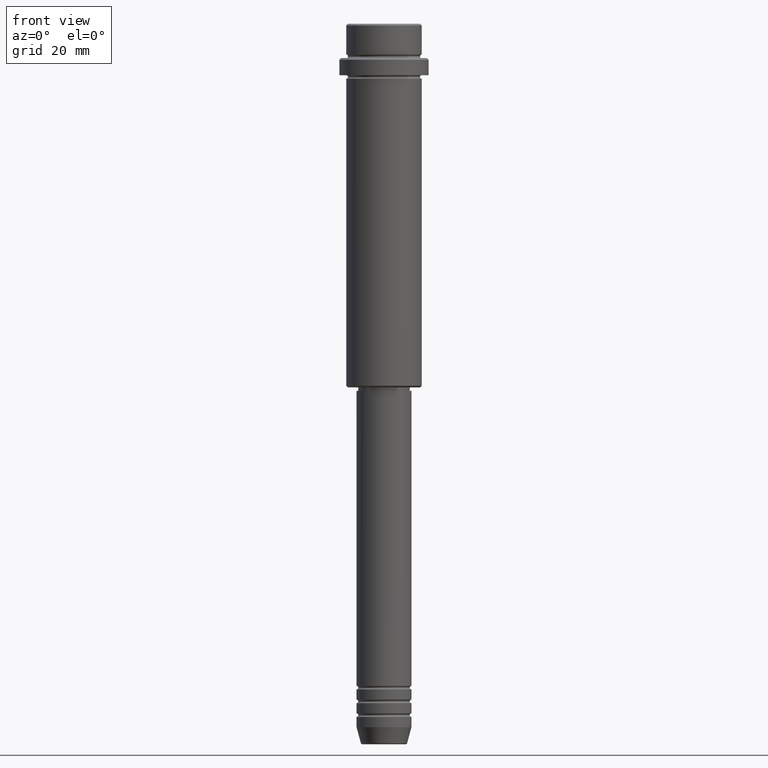
[diagram: clean part render]
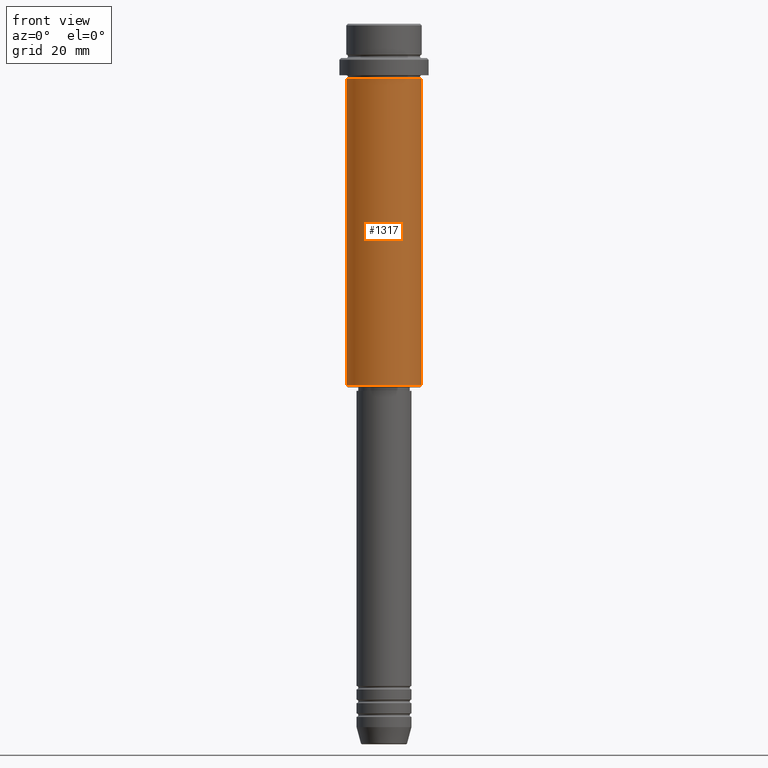
[diagram: same view with one face highlighted and labeled with its STEP entity id]
A machine part, front view. The second image highlights one B-rep face of the part: STEP entity #1317.
In plain terms, the highlighted cylindrical surface (partial cylindrical patch) has radius 11 mm, axis along (-0, -0, 1).
Its self-contained STEP definition (entity closure, byte-faithful):
#31 = EDGE_CURVE ( 'NONE', #207, #323, #254, .T. ) ;
#73 = DIRECTION ( 'NONE',  ( 1.000000000000000000, 0.000000000000000000, 0.000000000000000000 ) ) ;
#202 = CARTESIAN_POINT ( 'NONE',  ( 0.000000000000000000, 0.000000000000000000, -105.5000000000000142 ) ) ;
#207 = VERTEX_POINT ( 'NONE', #795 ) ;
#220 = EDGE_CURVE ( 'NONE', #1147, #410, #316, .T. ) ;
#254 = CIRCLE ( 'NONE', #498, 10.99999999999998757 ) ;
#315 = DIRECTION ( 'NONE',  ( -0.000000000000000000, -0.000000000000000000, 1.000000000000000000 ) ) ;
#316 = CIRCLE ( 'NONE', #1198, 10.99999999999997158 ) ;
#323 = VERTEX_POINT ( 'NONE', #331 ) ;
#331 = CARTESIAN_POINT ( 'NONE',  ( 10.99999999999998757, 0.000000000000000000, -105.5000000000000142 ) ) ;
#410 = VERTEX_POINT ( 'NONE', #1227 ) ;
#413 = EDGE_CURVE ( 'NONE', #323, #410, #1016, .T. ) ;
#419 = LINE ( 'NONE', #844, #1058 ) ;
#448 = AXIS2_PLACEMENT_3D ( 'NONE', #1398, #641, #73 ) ;
#459 = ORIENTED_EDGE ( 'NONE', *, *, #31, .T. ) ;
#463 = CARTESIAN_POINT ( 'NONE',  ( 0.000000000000000000, 0.000000000000000000, -16.00000000000000355 ) ) ;
#467 = DIRECTION ( 'NONE',  ( -0.000000000000000000, -0.000000000000000000, 1.000000000000000000 ) ) ;
#498 = AXIS2_PLACEMENT_3D ( 'NONE', #202, #1261, #730 ) ;
#641 = DIRECTION ( 'NONE',  ( -0.000000000000000000, -0.000000000000000000, 1.000000000000000000 ) ) ;
#704 = DIRECTION ( 'NONE',  ( -0.000000000000000000, -0.000000000000000000, 1.000000000000000000 ) ) ;
#712 = FACE_OUTER_BOUND ( 'NONE', #858, .T. ) ;
#717 = ORIENTED_EDGE ( 'NONE', *, *, #220, .F. ) ;
#730 = DIRECTION ( 'NONE',  ( -1.000000000000000000, 0.000000000000000000, 0.000000000000000000 ) ) ;
#776 = CARTESIAN_POINT ( 'NONE',  ( -10.99999999999997158, 1.347111479062085841E-15, -16.00000000000000355 ) ) ;
#795 = CARTESIAN_POINT ( 'NONE',  ( -10.99999999999998757, 1.347111479062086827E-15, -105.5000000000000142 ) ) ;
#844 = CARTESIAN_POINT ( 'NONE',  ( -10.99999999999998757, 1.347111479062086827E-15, 0.000000000000000000 ) ) ;
#858 = EDGE_LOOP ( 'NONE', ( #1327, #459, #1360, #717 ) ) ;
#1016 = LINE ( 'NONE', #1216, #1200 ) ;
#1058 = VECTOR ( 'NONE', #315, 1000.000000000000000 ) ;
#1118 = EDGE_CURVE ( 'NONE', #207, #1147, #419, .T. ) ;
#1147 = VERTEX_POINT ( 'NONE', #776 ) ;
#1198 = AXIS2_PLACEMENT_3D ( 'NONE', #463, #704, #1252 ) ;
#1200 = VECTOR ( 'NONE', #467, 1000.000000000000000 ) ;
#1216 = CARTESIAN_POINT ( 'NONE',  ( 10.99999999999998757, 0.000000000000000000, 0.000000000000000000 ) ) ;
#1227 = CARTESIAN_POINT ( 'NONE',  ( 10.99999999999997158, 0.000000000000000000, -16.00000000000000355 ) ) ;
#1252 = DIRECTION ( 'NONE',  ( 1.000000000000000000, 0.000000000000000000, 0.000000000000000000 ) ) ;
#1261 = DIRECTION ( 'NONE',  ( -0.000000000000000000, -0.000000000000000000, 1.000000000000000000 ) ) ;
#1298 = CYLINDRICAL_SURFACE ( 'NONE', #448, 10.99999999999998757 ) ;
#1317 = ADVANCED_FACE ( 'NONE', ( #712 ), #1298, .T. ) ;
#1327 = ORIENTED_EDGE ( 'NONE', *, *, #1118, .F. ) ;
#1360 = ORIENTED_EDGE ( 'NONE', *, *, #413, .T. ) ;
#1398 = CARTESIAN_POINT ( 'NONE',  ( 0.000000000000000000, 0.000000000000000000, 0.000000000000000000 ) ) ;